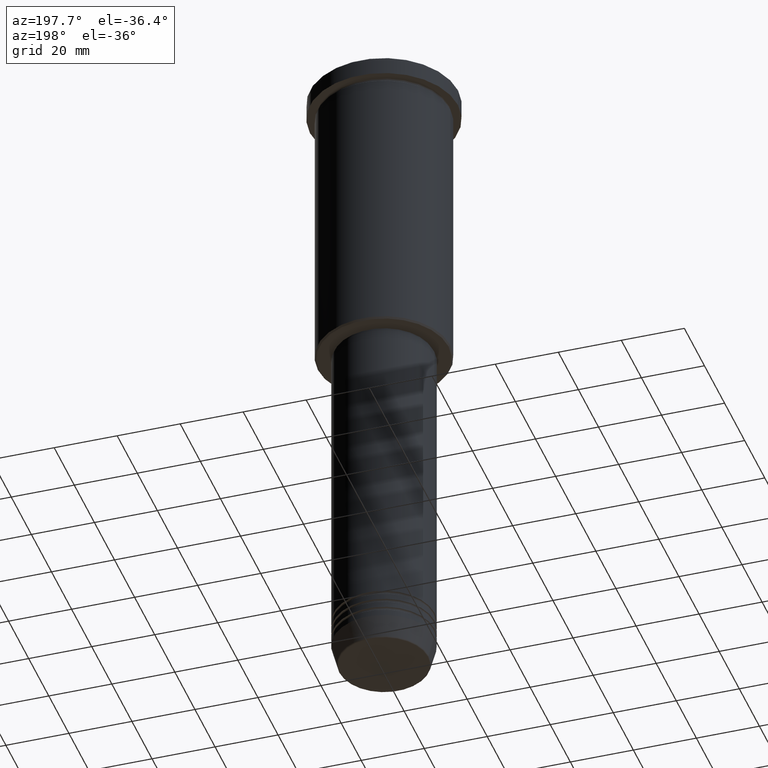
[diagram: clean part render]
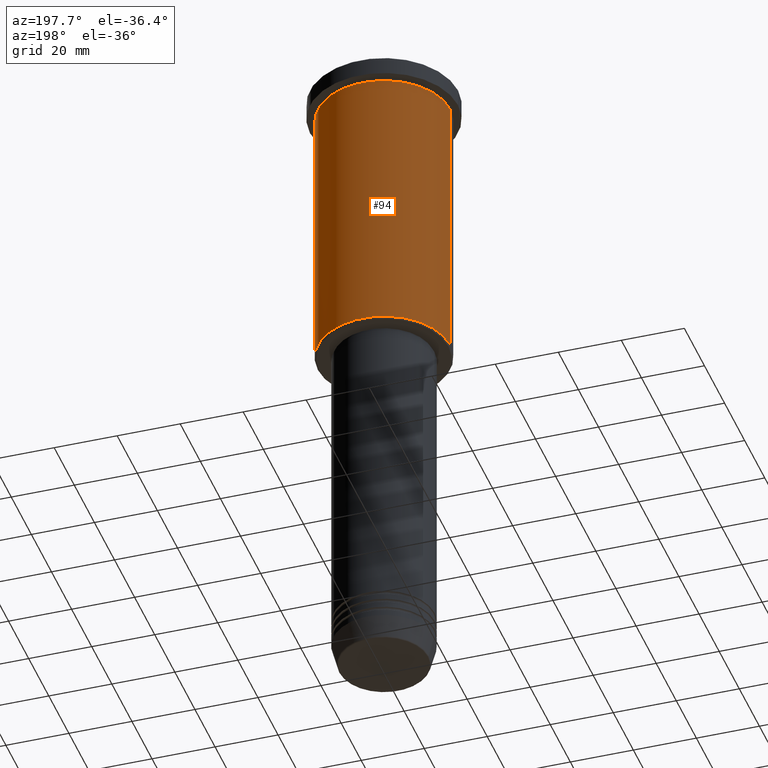
[diagram: same view with one face highlighted and labeled with its STEP entity id]
A machine part, auxiliary view. The second image highlights one B-rep face of the part: STEP entity #94.
In plain terms, the highlighted cylindrical surface (partial cylindrical patch) has radius 21 mm, axis along (-0, -0, 1).
Its self-contained STEP definition (entity closure, byte-faithful):
#36 = VERTEX_POINT ( 'NONE', #153 ) ;
#63 = DIRECTION ( 'NONE',  ( -0.000000000000000000, -0.000000000000000000, 1.000000000000000000 ) ) ;
#76 = CYLINDRICAL_SURFACE ( 'NONE', #1181, 21.00000000000000000 ) ;
#90 = DIRECTION ( 'NONE',  ( -0.000000000000000000, -0.000000000000000000, 1.000000000000000000 ) ) ;
#94 = ADVANCED_FACE ( 'NONE', ( #342 ), #76, .T. ) ;
#149 = VECTOR ( 'NONE', #63, 1000.000000000000000 ) ;
#153 = CARTESIAN_POINT ( 'NONE',  ( -21.00000000000000000, 2.571758278209441661E-15, -95.50000000000000000 ) ) ;
#160 = CARTESIAN_POINT ( 'NONE',  ( 0.000000000000000000, 0.000000000000000000, -6.999999999999994671 ) ) ;
#161 = DIRECTION ( 'NONE',  ( -0.000000000000000000, -0.000000000000000000, 1.000000000000000000 ) ) ;
#184 = CARTESIAN_POINT ( 'NONE',  ( 0.000000000000000000, 0.000000000000000000, -95.50000000000000000 ) ) ;
#261 = CARTESIAN_POINT ( 'NONE',  ( 0.000000000000000000, 0.000000000000000000, 0.000000000000000000 ) ) ;
#262 = CARTESIAN_POINT ( 'NONE',  ( -21.00000000000000000, 2.571758278209441661E-15, 0.000000000000000000 ) ) ;
#309 = ORIENTED_EDGE ( 'NONE', *, *, #618, .F. ) ;
#342 = FACE_OUTER_BOUND ( 'NONE', #548, .T. ) ;
#373 = AXIS2_PLACEMENT_3D ( 'NONE', #160, #777, #499 ) ;
#388 = ORIENTED_EDGE ( 'NONE', *, *, #413, .T. ) ;
#413 = EDGE_CURVE ( 'NONE', #714, #36, #1139, .T. ) ;
#452 = DIRECTION ( 'NONE',  ( -1.000000000000000000, 0.000000000000000000, 0.000000000000000000 ) ) ;
#454 = CARTESIAN_POINT ( 'NONE',  ( 21.00000000000000000, 0.000000000000000000, -6.999999999999994671 ) ) ;
#456 = VECTOR ( 'NONE', #161, 1000.000000000000000 ) ;
#458 = CIRCLE ( 'NONE', #373, 21.00000000000000000 ) ;
#499 = DIRECTION ( 'NONE',  ( 1.000000000000000000, 0.000000000000000000, 0.000000000000000000 ) ) ;
#548 = EDGE_LOOP ( 'NONE', ( #388, #655, #910, #309 ) ) ;
#606 = DIRECTION ( 'NONE',  ( 1.000000000000000000, 0.000000000000000000, 0.000000000000000000 ) ) ;
#615 = VERTEX_POINT ( 'NONE', #687 ) ;
#616 = CARTESIAN_POINT ( 'NONE',  ( 21.00000000000000000, 0.000000000000000000, 0.000000000000000000 ) ) ;
#618 = EDGE_CURVE ( 'NONE', #714, #850, #1049, .T. ) ;
#655 = ORIENTED_EDGE ( 'NONE', *, *, #961, .T. ) ;
#687 = CARTESIAN_POINT ( 'NONE',  ( -21.00000000000000000, 2.571758278209441661E-15, -6.999999999999994671 ) ) ;
#714 = VERTEX_POINT ( 'NONE', #1095 ) ;
#777 = DIRECTION ( 'NONE',  ( -0.000000000000000000, -0.000000000000000000, 1.000000000000000000 ) ) ;
#792 = DIRECTION ( 'NONE',  ( -0.000000000000000000, -0.000000000000000000, 1.000000000000000000 ) ) ;
#850 = VERTEX_POINT ( 'NONE', #454 ) ;
#910 = ORIENTED_EDGE ( 'NONE', *, *, #1178, .F. ) ;
#961 = EDGE_CURVE ( 'NONE', #36, #615, #1150, .T. ) ;
#966 = AXIS2_PLACEMENT_3D ( 'NONE', #184, #90, #452 ) ;
#1049 = LINE ( 'NONE', #616, #456 ) ;
#1095 = CARTESIAN_POINT ( 'NONE',  ( 21.00000000000000000, 0.000000000000000000, -95.50000000000000000 ) ) ;
#1139 = CIRCLE ( 'NONE', #966, 21.00000000000000000 ) ;
#1150 = LINE ( 'NONE', #262, #149 ) ;
#1178 = EDGE_CURVE ( 'NONE', #850, #615, #458, .T. ) ;
#1181 = AXIS2_PLACEMENT_3D ( 'NONE', #261, #792, #606 ) ;